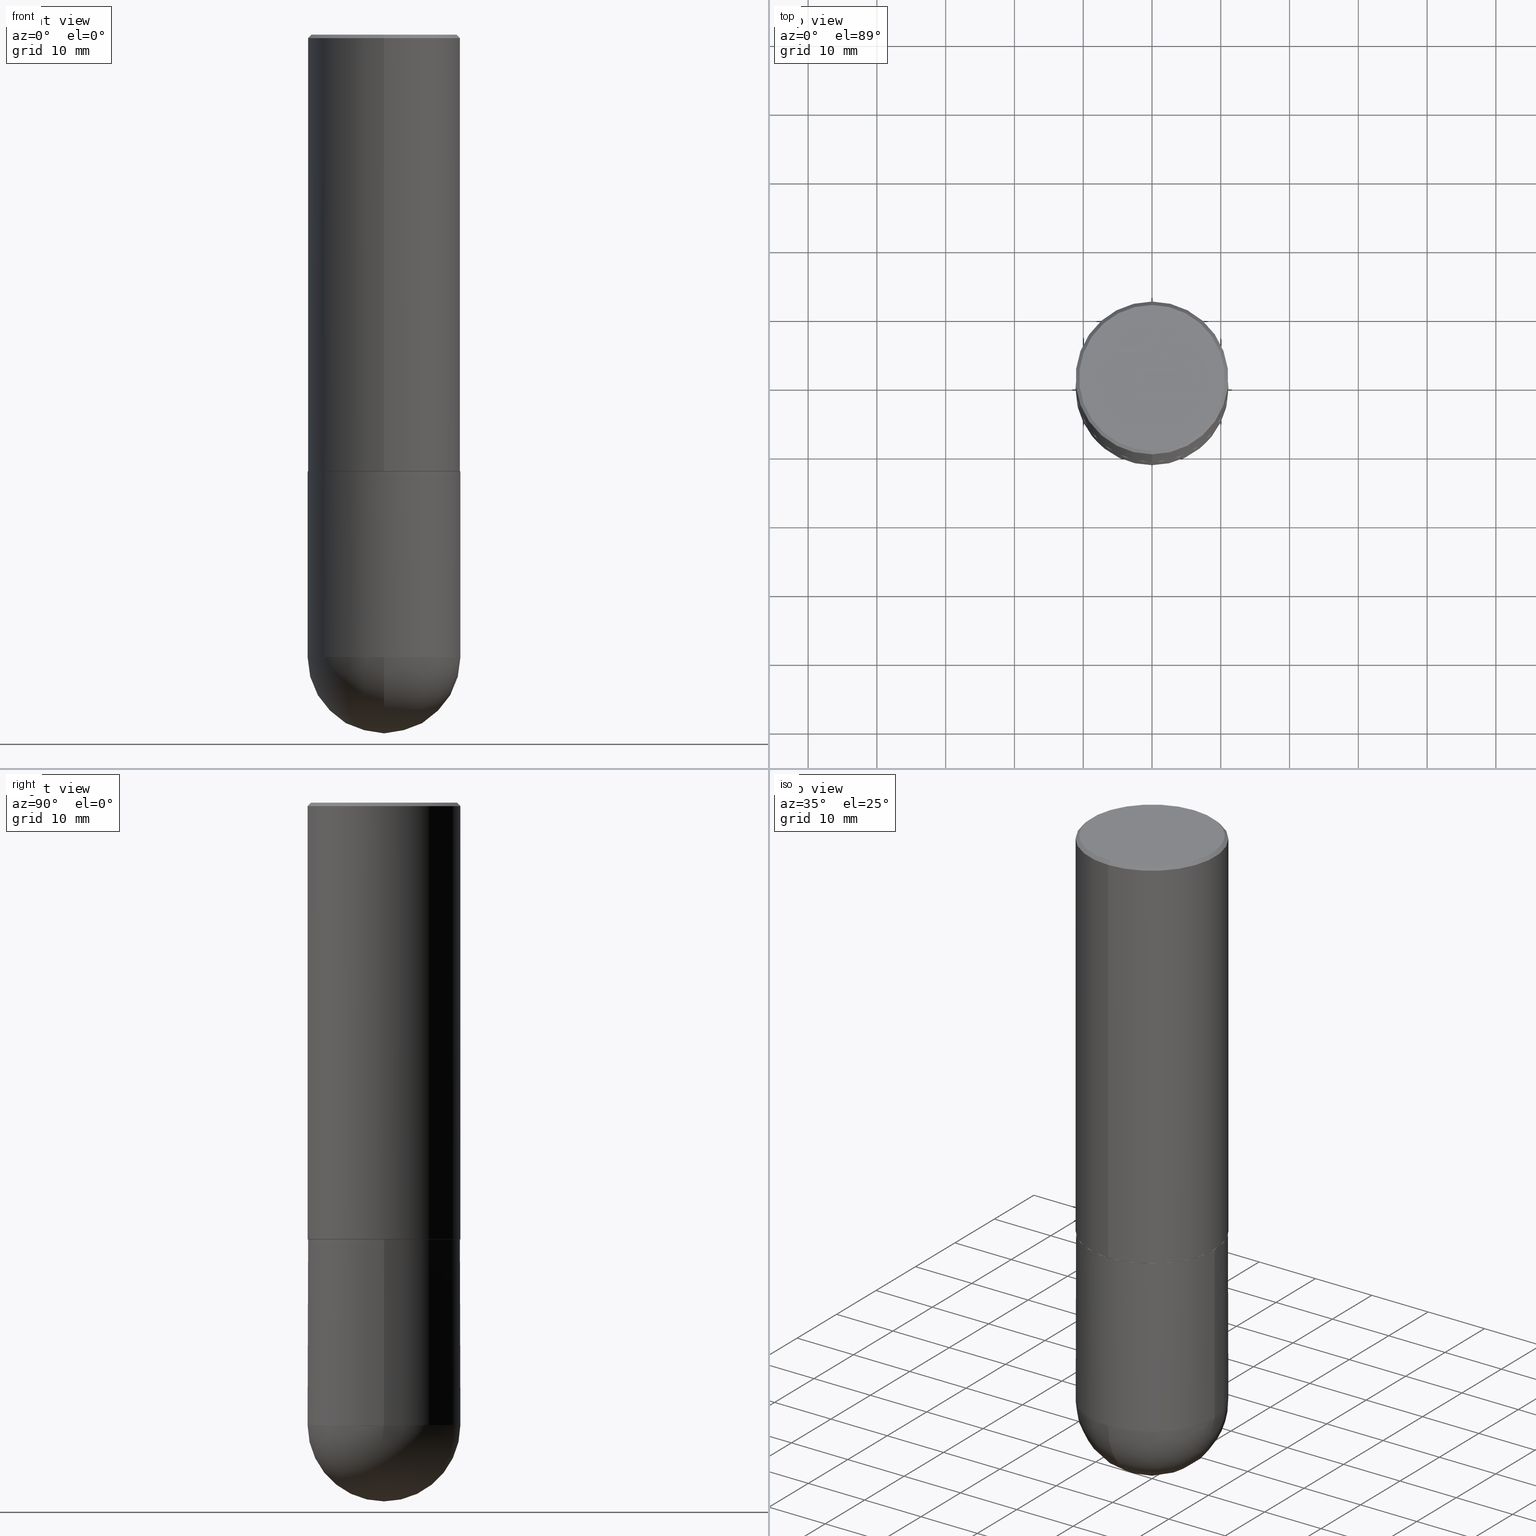
[diagram: canonical four-view strip — front | top / right | iso, engineering-drawing reading convention]
A machine part, canonical four-view strip (front | top / right | iso — engineering-drawing reading convention). The complete STEP part file that produces these views, byte-faithful:
ISO-10303-21;
HEADER;
FILE_DESCRIPTION (( 'STEP AP203' ),
    '1' );
FILE_NAME ('30067.STEP',
    '2024-02-21T16:35:09',
    ( '' ),
    ( '' ),
    'SwSTEP 2.0',
    'SolidWorks 2023',
    '' );
FILE_SCHEMA (( 'CONFIG_CONTROL_DESIGN' ));
ENDSEC;

DATA;
#1 = CYLINDRICAL_SURFACE ( 'NONE', #273, 0.4374999999999998890 ) ;
#2 = AXIS2_PLACEMENT_3D ( 'NONE', #242, #365, #87 ) ;
#3 = CARTESIAN_POINT ( 'NONE',  ( 0.4374999999999998890, -3.055046171487740897E-15, 2.133327339410721209E-29 ) ) ;
#4 = APPROVAL_ROLE ( '' ) ;
#5 = CC_DESIGN_DATE_AND_TIME_ASSIGNMENT ( #111, #84, ( #401 ) ) ;
#6 = DIRECTION ( 'NONE',  ( -2.445589378329462952E-29, 3.491308672669929878E-15, 1.000000000000000000 ) ) ;
#7 = DIRECTION ( 'NONE',  ( -1.000000000000000000, 6.982962677686265922E-15, -4.883557194083112340E-29 ) ) ;
#8 = VERTEX_POINT ( 'NONE', #30 ) ;
#9 = CARTESIAN_POINT ( 'NONE',  ( 6.113672015462842613E-29, -8.728703347107864943E-15, -2.500000000000000000 ) ) ;
#10 = DIRECTION ( 'NONE',  ( -1.000000000000000000, 6.982962677686265922E-15, -4.883557194083112340E-29 ) ) ;
#11 = DATE_AND_TIME ( #259, #322 ) ;
#12 = ORIENTED_EDGE ( 'NONE', *, *, #343, .T. ) ;
#13 = PERSON_AND_ORGANIZATION_ROLE ( 'creator' ) ;
#14 = ORIENTED_EDGE ( 'NONE', *, *, #248, .F. ) ;
#15 = APPROVAL_STATUS ( 'not_yet_approved' ) ;
#16 = ORIENTED_EDGE ( 'NONE', *, *, #398, .F. ) ;
#17 = ORIENTED_EDGE ( 'NONE', *, *, #325, .T. ) ;
#18 = AXIS2_PLACEMENT_3D ( 'NONE', #139, #10, #74 ) ;
#19 = EDGE_CURVE ( 'NONE', #336, #198, #59, .T. ) ;
#20 = CC_DESIGN_APPROVAL ( #299, ( #148 ) ) ;
#21 = ORIENTED_EDGE ( 'NONE', *, *, #152, .F. ) ;
#22 = ORIENTED_EDGE ( 'NONE', *, *, #101, .F. ) ;
#23 = CARTESIAN_POINT ( 'NONE',  ( 6.113973445823658220E-29, -8.728271681674825680E-15, -2.500000000000000000 ) ) ;
#24 = ORIENTED_EDGE ( 'NONE', *, *, #143, .T. ) ;
#25 = AXIS2_PLACEMENT_3D ( 'NONE', #410, #282, #122 ) ;
#26 = DIRECTION ( 'NONE',  ( 0.000000000000000000, 0.000000000000000000, 1.000000000000000000 ) ) ;
#27 = CARTESIAN_POINT ( 'NONE',  ( -5.739702864296203553E-45, 8.193965252807117004E-31, 2.346960988282051654E-16 ) ) ;
#28 = CARTESIAN_POINT ( 'NONE',  ( 0.000000000000000000, 0.000000000000000000, 0.000000000000000000 ) ) ;
#29 = DIRECTION ( 'NONE',  ( -6.982962677686265922E-15, -1.000000000000000000, 3.491308672669929878E-15 ) ) ;
#30 = CARTESIAN_POINT ( 'NONE',  ( 0.4375000000000000000, -1.178374951859560505E-14, -2.500000000000000000 ) ) ;
#31 = AXIS2_PLACEMENT_3D ( 'NONE', #58, #382, #190 ) ;
#32 = CARTESIAN_POINT ( 'NONE',  ( -2.932862894047327755E-15, -0.4174999999999997047, 1.692317469667899733E-15 ) ) ;
#33 = DIRECTION ( 'NONE',  ( 1.000000000000000000, -6.982962677686265133E-15, 0.000000000000000000 ) ) ;
#34 = FACE_OUTER_BOUND ( 'NONE', #302, .T. ) ;
#35 = SPHERICAL_SURFACE ( 'NONE', #18, 0.4375000000000001665 ) ;
#36 = PERSON_AND_ORGANIZATION_ROLE ( 'classification_officer' ) ;
#37 = CC_DESIGN_PERSON_AND_ORGANIZATION_ASSIGNMENT ( #265, #205, ( #337 ) ) ;
#38 = MANIFOLD_SOLID_BREP ( 'Body-Move/Copy2[2]', #240 ) ;
#39 = AXIS2_PLACEMENT_3D ( 'NONE', #81, #390, #132 ) ;
#40 = PERSON_AND_ORGANIZATION ( #266, #306 ) ;
#41 = DESIGN_CONTEXT ( 'detailed design', #71, 'design' ) ;
#42 = ORIENTED_EDGE ( 'NONE', *, *, #405, .F. ) ;
#43 = LINE ( 'NONE', #375, #407 ) ;
#44 = COORDINATED_UNIVERSAL_TIME_OFFSET ( 5, 0, .BEHIND. ) ;
#45 = ORIENTED_EDGE ( 'NONE', *, *, #62, .F. ) ;
#46 = CONICAL_SURFACE ( 'NONE', #351, 0.4375000000000000000, 0.7853981633974466137 ) ;
#47 = CALENDAR_DATE ( 2024, 21, 2 ) ;
#48 = VERTEX_POINT ( 'NONE', #164 ) ;
#49 = ORIENTED_EDGE ( 'NONE', *, *, #101, .T. ) ;
#50 = ADVANCED_FACE ( 'NONE', ( #96 ), #179, .T. ) ;
#51 = ORIENTED_EDGE ( 'NONE', *, *, #271, .F. ) ;
#52 = CIRCLE ( 'NONE', #31, 0.4174999999999997047 ) ;
#53 = AXIS2_PLACEMENT_3D ( 'NONE', #63, #348, #280 ) ;
#54 = ORIENTED_EDGE ( 'NONE', *, *, #187, .T. ) ;
#55 = CARTESIAN_POINT ( 'NONE',  ( 8.711982622034549126E-29, -1.243840226962870597E-14, -3.562500000000000000 ) ) ;
#56 = APPLICATION_PROTOCOL_DEFINITION ( 'international standard', 'config_control_design', 1994, #328 ) ;
#57 = CIRCLE ( 'NONE', #366, 0.4375000000000000000 ) ;
#58 = CARTESIAN_POINT ( 'NONE',  ( -5.739702864296203553E-45, 8.193965252807117004E-31, 2.346960988282051654E-16 ) ) ;
#59 = CIRCLE ( 'NONE', #25, 0.4374999999999998890 ) ;
#60 = DIRECTION ( 'NONE',  ( -6.982962677686264344E-15, -1.000000000000000000, 3.755117517064279208E-15 ) ) ;
#61 = DIRECTION ( 'NONE',  ( -2.445589378329462952E-29, 3.491308672669929878E-15, 1.000000000000000000 ) ) ;
#62 = EDGE_CURVE ( 'NONE', #156, #76, #115, .T. ) ;
#63 = CARTESIAN_POINT ( 'NONE',  ( 0.000000000000000000, 0.000000000000000000, 0.000000000000000000 ) ) ;
#64 = PRODUCT_RELATED_PRODUCT_CATEGORY ( 'detail', '', ( #337 ) ) ;
#65 = DIRECTION ( 'NONE',  ( 2.438088387897960049E-29, -3.491481338843145188E-15, -1.000000000000000000 ) ) ;
#66 = LINE ( 'NONE', #161, #68 ) ;
#67 = CARTESIAN_POINT ( 'NONE',  ( 2.915386917934013906E-15, 0.4174999999999997047, -1.340273321425592132E-15 ) ) ;
#68 = VECTOR ( 'NONE', #224, 39.37007874015748143 ) ;
#69 = CARTESIAN_POINT ( 'NONE',  ( 8.711982622034549126E-29, -1.243840226962870597E-14, -3.562500000000000000 ) ) ;
#70 = CARTESIAN_POINT ( 'NONE',  ( 8.711982622034549126E-29, -1.243840226962870597E-14, -3.562500000000000000 ) ) ;
#71 = APPLICATION_CONTEXT ( 'configuration controlled 3d designs of mechanical parts and assemblies' ) ;
#72 = DIRECTION ( 'NONE',  ( 6.982962677686265922E-15, 1.000000000000000000, 0.000000000000000000 ) ) ;
#73 = APPROVAL_STATUS ( 'not_yet_approved' ) ;
#74 = DIRECTION ( 'NONE',  ( 6.982962677686265922E-15, 1.000000000000000000, -3.746534391310987979E-15 ) ) ;
#75 = DIRECTION ( 'NONE',  ( -2.445468806185136877E-29, 3.491481338843145188E-15, 1.000000000000000000 ) ) ;
#76 = VERTEX_POINT ( 'NONE', #252 ) ;
#77 = CARTESIAN_POINT ( 'NONE',  ( -0.4374999999999998890, 3.108624468950437524E-15, -2.152034101986520964E-29 ) ) ;
#78 = AXIS2_PLACEMENT_3D ( 'NONE', #371, #177, #249 ) ;
#79 = ORIENTED_EDGE ( 'NONE', *, *, #152, .T. ) ;
#80 = DIRECTION ( 'NONE',  ( 6.982962677686265133E-15, 1.000000000000000000, -3.492862791899308071E-15 ) ) ;
#81 = CARTESIAN_POINT ( 'NONE',  ( 8.380862844120662879E-29, -1.291258463776875784E-14, -3.562500000000000000 ) ) ;
#82 = PERSON_AND_ORGANIZATION ( #266, #306 ) ;
#83 = EDGE_LOOP ( 'NONE', ( #42, #270, #146, #201 ) ) ;
#84 = DATE_TIME_ROLE ( 'classification_date' ) ;
#85 = ORIENTED_EDGE ( 'NONE', *, *, #158, .T. ) ;
#86 = AXIS2_PLACEMENT_3D ( 'NONE', #123, #61, #244 ) ;
#87 = DIRECTION ( 'NONE',  ( -6.982962677686265922E-15, -1.000000000000000000, 3.491308672669929878E-15 ) ) ;
#88 = ORIENTED_EDGE ( 'NONE', *, *, #211, .F. ) ;
#89 = EDGE_LOOP ( 'NONE', ( #361, #116, #92, #51 ) ) ;
#90 = CIRCLE ( 'NONE', #78, 0.4375000000000000000 ) ;
#91 = AXIS2_PLACEMENT_3D ( 'NONE', #103, #124, #189 ) ;
#92 = ORIENTED_EDGE ( 'NONE', *, *, #157, .F. ) ;
#93 = EDGE_CURVE ( 'NONE', #326, #48, #379, .T. ) ;
#94 = DIRECTION ( 'NONE',  ( 4.937700262164538576E-15, 0.7071067811865437980, -0.7071067811865511255 ) ) ;
#95 = CARTESIAN_POINT ( 'NONE',  ( 0.4374999999999998890, -1.363859897985603030E-14, -3.562500000000000000 ) ) ;
#96 = FACE_OUTER_BOUND ( 'NONE', #83, .T. ) ;
#97 =( LENGTH_UNIT ( ) NAMED_UNIT ( * ) SI_UNIT ( $, .METRE. ) );
#98 = LOCAL_TIME ( 11, 35, 9.000000000000000000, #324 ) ;
#99 = DIRECTION ( 'NONE',  ( 1.000000000000000000, -6.982962677686265133E-15, 0.000000000000000000 ) ) ;
#100 = CIRCLE ( 'NONE', #323, 0.4375000000000002776 ) ;
#101 = EDGE_CURVE ( 'NONE', #392, #329, #52, .T. ) ;
#102 = CC_DESIGN_PERSON_AND_ORGANIZATION_ASSIGNMENT ( #233, #363, ( #160 ) ) ;
#103 = CARTESIAN_POINT ( 'NONE',  ( 6.113973445823658220E-29, -8.728271681674825680E-15, -2.500000000000000000 ) ) ;
#104 = FACE_OUTER_BOUND ( 'NONE', #117, .T. ) ;
#105 = FACE_OUTER_BOUND ( 'NONE', #334, .T. ) ;
#106 = SPHERICAL_SURFACE ( 'NONE', #184, 0.4375000000000001665 ) ;
#107 = LINE ( 'NONE', #168, #372 ) ;
#108 = APPROVAL ( #296, 'UNSPECIFIED' ) ;
#109 = DATE_AND_TIME ( #140, #138 ) ;
#110 = CARTESIAN_POINT ( 'NONE',  ( 9.469462209402459055E-29, -1.441331857478128510E-14, -4.000000000000000000 ) ) ;
#111 = DATE_AND_TIME ( #202, #129 ) ;
#112 = CIRCLE ( 'NONE', #258, 0.4174999999999997047 ) ;
#113 = CARTESIAN_POINT ( 'NONE',  ( 4.891178756658950356E-31, -6.982617345339894070E-17, -0.02000000000000009756 ) ) ;
#114 = SHAPE_DEFINITION_REPRESENTATION ( #155, #142 ) ;
#115 = CIRCLE ( 'NONE', #213, 0.4364999999999999991 ) ;
#116 = ORIENTED_EDGE ( 'NONE', *, *, #405, .T. ) ;
#117 = EDGE_LOOP ( 'NONE', ( #186, #79, #269, #144, #210 ) ) ;
#118 = EDGE_LOOP ( 'NONE', ( #12, #85 ) ) ;
#119 = AXIS2_PLACEMENT_3D ( 'NONE', #381, #250, #215 ) ;
#120 = CC_DESIGN_SECURITY_CLASSIFICATION ( #401, ( #148 ) ) ;
#121 = DIMENSIONAL_EXPONENTS ( 1.000000000000000000, 0.000000000000000000, 0.000000000000000000, 0.000000000000000000, 0.000000000000000000, 0.000000000000000000, 0.000000000000000000 ) ;
#122 = DIRECTION ( 'NONE',  ( 1.000000000000000000, -6.982962677686265133E-15, 0.000000000000000000 ) ) ;
#123 = CARTESIAN_POINT ( 'NONE',  ( 6.113973445823658220E-29, -8.728271681674825680E-15, -2.500000000000000000 ) ) ;
#124 = DIRECTION ( 'NONE',  ( -2.445589378329462952E-29, 3.491308672669929878E-15, 1.000000000000000000 ) ) ;
#125 = ADVANCED_FACE ( 'NONE', ( #105 ), #349, .F. ) ;
#126 = DIRECTION ( 'NONE',  ( -2.445589378329462952E-29, 3.491308672669929878E-15, 1.000000000000000000 ) ) ;
#127 = CONICAL_SURFACE ( 'NONE', #86, 0.4364999999999999991, 0.7853981633976873100 ) ;
#128 = CARTESIAN_POINT ( 'NONE',  ( 6.113973445823658220E-29, -8.728271681674825680E-15, -2.500000000000000000 ) ) ;
#129 = LOCAL_TIME ( 11, 35, 9.000000000000000000, #362 ) ;
#130 = CYLINDRICAL_SURFACE ( 'NONE', #53, 0.4374999999999998890 ) ;
#131 = DIRECTION ( 'NONE',  ( -2.445589378329462952E-29, 3.491308672669929878E-15, 1.000000000000000000 ) ) ;
#132 = DIRECTION ( 'NONE',  ( -7.105427357601001070E-15, -1.000000000000000000, 0.000000000000000000 ) ) ;
#133 = DIRECTION ( 'NONE',  ( 2.445589378329462952E-29, -3.491308672669929878E-15, -1.000000000000000000 ) ) ;
#134 = CARTESIAN_POINT ( 'NONE',  ( 3.055046171487827277E-15, 0.4374999999999873435, -3.562500000000001776 ) ) ;
#135 = DIRECTION ( 'NONE',  ( 1.000000000000000000, -6.982962677686266711E-15, 4.876176775795935232E-29 ) ) ;
#136 = EDGE_CURVE ( 'NONE', #329, #392, #112, .T. ) ;
#137 = DIRECTION ( 'NONE',  ( 1.000000000000000000, -6.982962677686265922E-15, 4.883557194083112340E-29 ) ) ;
#138 = LOCAL_TIME ( 11, 35, 9.000000000000000000, #320 ) ;
#139 = CARTESIAN_POINT ( 'NONE',  ( 8.380862844120662879E-29, -1.291258463776875784E-14, -3.562500000000000000 ) ) ;
#140 = CALENDAR_DATE ( 2024, 21, 2 ) ;
#141 = PERSON_AND_ORGANIZATION ( #266, #306 ) ;
#142 = ADVANCED_BREP_SHAPE_REPRESENTATION ( '30067', ( #307, #38, #331 ), #216 ) ;
#143 = EDGE_CURVE ( 'NONE', #329, #313, #374, .T. ) ;
#144 = ORIENTED_EDGE ( 'NONE', *, *, #317, .T. ) ;
#145 = DATE_TIME_ROLE ( 'creation_date' ) ;
#146 = ORIENTED_EDGE ( 'NONE', *, *, #271, .T. ) ;
#147 = AXIS2_PLACEMENT_3D ( 'NONE', #162, #133, #316 ) ;
#148 = PRODUCT_DEFINITION_FORMATION_WITH_SPECIFIED_SOURCE ( 'ANY', '', #337, .NOT_KNOWN. ) ;
#149 = APPROVAL_PERSON_ORGANIZATION ( #82, #299, #178 ) ;
#150 = APPROVAL_ROLE ( '' ) ;
#151 = EDGE_LOOP ( 'NONE', ( #54, #181, #241, #304, #263 ) ) ;
#152 = EDGE_CURVE ( 'NONE', #397, #293, #402, .T. ) ;
#153 = ORIENTED_EDGE ( 'NONE', *, *, #335, .F. ) ;
#154 = CYLINDRICAL_SURFACE ( 'NONE', #2, 0.4375000000000001110 ) ;
#155 = PRODUCT_DEFINITION_SHAPE ( 'NONE', 'NONE',  #160 ) ;
#156 = VERTEX_POINT ( 'NONE', #218 ) ;
#157 = EDGE_CURVE ( 'NONE', #48, #326, #100, .T. ) ;
#158 = EDGE_CURVE ( 'NONE', #243, #8, #227, .T. ) ;
#159 = DIRECTION ( 'NONE',  ( -6.982962677686265922E-15, -1.000000000000000000, 3.491308672669929878E-15 ) ) ;
#160 = PRODUCT_DEFINITION ( 'UNKNOWN', '', #148, #41 ) ;
#161 = CARTESIAN_POINT ( 'NONE',  ( 3.108624468950438708E-15, 0.4375000000000001110, -1.527447544293094691E-15 ) ) ;
#162 = CARTESIAN_POINT ( 'NONE',  ( 4.891178756658950356E-31, -6.982617345339894070E-17, -0.02000000000000009756 ) ) ;
#163 = AXIS2_PLACEMENT_3D ( 'NONE', #191, #346, #29 ) ;
#164 = CARTESIAN_POINT ( 'NONE',  ( -3.055046171487681732E-15, -0.4375000000000089928, -2.498999999999998778 ) ) ;
#165 = LOCAL_TIME ( 11, 35, 9.000000000000000000, #44 ) ;
#166 = DIRECTION ( 'NONE',  ( -2.445589378329463232E-29, 3.491308672669929878E-15, 1.000000000000000000 ) ) ;
#167 = CARTESIAN_POINT ( 'NONE',  ( 0.000000000000000000, 0.000000000000000000, 0.000000000000000000 ) ) ;
#168 = CARTESIAN_POINT ( 'NONE',  ( 3.101519041592897653E-15, 0.4364999999999912283, -2.500000000000001776 ) ) ;
#169 = LINE ( 'NONE', #291, #378 ) ;
#170 = VECTOR ( 'NONE', #94, 39.37007874015748854 ) ;
#171 = EDGE_LOOP ( 'NONE', ( #88, #239, #24, #175 ) ) ;
#172 = FACE_OUTER_BOUND ( 'NONE', #118, .T. ) ;
#173 = EDGE_LOOP ( 'NONE', ( #16, #206, #403, #305 ) ) ;
#174 = DATE_AND_TIME ( #47, #165 ) ;
#175 = ORIENTED_EDGE ( 'NONE', *, *, #353, .T. ) ;
#176 = CONICAL_SURFACE ( 'NONE', #147, 0.4375000000000000000, 0.7853981633974466137 ) ;
#177 = DIRECTION ( 'NONE',  ( -2.445589378329462952E-29, 3.491308672669929878E-15, 1.000000000000000000 ) ) ;
#178 = APPROVAL_ROLE ( '' ) ;
#179 = CONICAL_SURFACE ( 'NONE', #344, 0.4364999999999999991, 0.7853981633976873100 ) ;
#180 = CYLINDRICAL_SURFACE ( 'NONE', #387, 0.4375000000000001110 ) ;
#181 = ORIENTED_EDGE ( 'NONE', *, *, #278, .T. ) ;
#182 = ORIENTED_EDGE ( 'NONE', *, *, #187, .F. ) ;
#183 = FACE_OUTER_BOUND ( 'NONE', #204, .T. ) ;
#184 = AXIS2_PLACEMENT_3D ( 'NONE', #292, #7, #261 ) ;
#185 = ADVANCED_FACE ( 'NONE', ( #172 ), #264, .F. ) ;
#186 = ORIENTED_EDGE ( 'NONE', *, *, #278, .F. ) ;
#187 = EDGE_CURVE ( 'NONE', #198, #397, #338, .T. ) ;
#188 = AXIS2_PLACEMENT_3D ( 'NONE', #69, #225, #254 ) ;
#189 = DIRECTION ( 'NONE',  ( -6.982962677686264344E-15, -1.000000000000000000, 3.755117517064279208E-15 ) ) ;
#190 = DIRECTION ( 'NONE',  ( -6.982962677686265922E-15, -1.000000000000000000, 3.491308672669929878E-15 ) ) ;
#191 = CARTESIAN_POINT ( 'NONE',  ( 6.113973445823658220E-29, -8.728271681674825680E-15, -2.500000000000000000 ) ) ;
#192 =( CONVERSION_BASED_UNIT ( 'INCH', #310 ) LENGTH_UNIT ( ) NAMED_UNIT ( #121 ) );
#193 = APPROVAL_PERSON_ORGANIZATION ( #40, #345, #150 ) ;
#194 = EDGE_CURVE ( 'NONE', #48, #399, #350, .T. ) ;
#195 = DIRECTION ( 'NONE',  ( -2.445589378329462952E-29, 3.491308672669929878E-15, 1.000000000000000000 ) ) ;
#196 = CARTESIAN_POINT ( 'NONE',  ( -3.001467874025043875E-15, -0.4375000000000000555, -0.01999999999999857100 ) ) ;
#197 = APPROVAL_DATE_TIME ( #109, #108 ) ;
#198 = VERTEX_POINT ( 'NONE', #134 ) ;
#199 = ADVANCED_FACE ( 'NONE', ( #393 ), #46, .T. ) ;
#200 = VECTOR ( 'NONE', #234, 39.37007874015748143 ) ;
#201 = ORIENTED_EDGE ( 'NONE', *, *, #93, .F. ) ;
#202 = CALENDAR_DATE ( 2024, 21, 2 ) ;
#203 = ORIENTED_EDGE ( 'NONE', *, *, #325, .F. ) ;
#204 = EDGE_LOOP ( 'NONE', ( #295, #235, #203, #297 ) ) ;
#205 = PERSON_AND_ORGANIZATION_ROLE ( 'design_owner' ) ;
#206 = ORIENTED_EDGE ( 'NONE', *, *, #93, .T. ) ;
#207 = CIRCLE ( 'NONE', #91, 0.4364999999999999991 ) ;
#208 = CARTESIAN_POINT ( 'NONE',  ( 0.000000000000000000, 0.000000000000000000, 0.000000000000000000 ) ) ;
#209 = ORIENTED_EDGE ( 'NONE', *, *, #211, .T. ) ;
#210 = ORIENTED_EDGE ( 'NONE', *, *, #158, .F. ) ;
#211 = EDGE_CURVE ( 'NONE', #392, #399, #43, .T. ) ;
#212 = CIRCLE ( 'NONE', #39, 0.4375000000000001665 ) ;
#213 = AXIS2_PLACEMENT_3D ( 'NONE', #23, #126, #60 ) ;
#214 = ADVANCED_FACE ( 'NONE', ( #342 ), #127, .T. ) ;
#215 = DIRECTION ( 'NONE',  ( -6.982962677686265133E-15, -1.000000000000000000, 3.492862791899308071E-15 ) ) ;
#216 =( GEOMETRIC_REPRESENTATION_CONTEXT ( 3 ) GLOBAL_UNCERTAINTY_ASSIGNED_CONTEXT ( ( #283 ) ) GLOBAL_UNIT_ASSIGNED_CONTEXT ( ( #192, #285, #385 ) ) REPRESENTATION_CONTEXT ( 'NONE', 'WORKASPACE' ) );
#217 = CARTESIAN_POINT ( 'NONE',  ( 6.113672015462842613E-29, -8.728703347107864943E-15, -2.500000000000000000 ) ) ;
#218 = CARTESIAN_POINT ( 'NONE',  ( -3.048063208809993352E-15, -0.4365000000000087144, -2.499999999999998668 ) ) ;
#219 = FACE_OUTER_BOUND ( 'NONE', #367, .T. ) ;
#220 = PLANE ( 'NONE',  #163 ) ;
#221 = DIRECTION ( 'NONE',  ( -6.982962677686265133E-15, -1.000000000000000000, 3.746534391310987190E-15 ) ) ;
#222 = CARTESIAN_POINT ( 'NONE',  ( 3.055046171487802034E-15, 0.4374999999999912292, -2.500000000000001776 ) ) ;
#223 = EDGE_CURVE ( 'NONE', #272, #293, #212, .T. ) ;
#224 = DIRECTION ( 'NONE',  ( -2.445589378329463232E-29, 3.491308672669929878E-15, 1.000000000000000000 ) ) ;
#225 = DIRECTION ( 'NONE',  ( -2.445468806185136597E-29, 3.491481338843145583E-15, 1.000000000000000000 ) ) ;
#226 = CARTESIAN_POINT ( 'NONE',  ( -0.4375000000000000000, -7.474928339417847141E-15, -2.500000000000000000 ) ) ;
#227 = CIRCLE ( 'NONE', #359, 0.4375000000000000000 ) ;
#228 = CC_DESIGN_PERSON_AND_ORGANIZATION_ASSIGNMENT ( #391, #231, ( #148 ) ) ;
#229 = DIRECTION ( 'NONE',  ( 1.000000000000000000, -6.982962677686265133E-15, 0.000000000000000000 ) ) ;
#230 = DIRECTION ( 'NONE',  ( -2.445468806185136597E-29, 3.491481338843145583E-15, 1.000000000000000000 ) ) ;
#231 = PERSON_AND_ORGANIZATION_ROLE ( 'design_supplier' ) ;
#232 = EDGE_LOOP ( 'NONE', ( #404, #364, #406, #14 ) ) ;
#233 = PERSON_AND_ORGANIZATION ( #266, #306 ) ;
#234 = DIRECTION ( 'NONE',  ( -2.445468806185136877E-29, 3.491481338843145188E-15, 1.000000000000000000 ) ) ;
#235 = ORIENTED_EDGE ( 'NONE', *, *, #398, .T. ) ;
#236 = SECURITY_CLASSIFICATION_LEVEL ( 'unclassified' ) ;
#237 = ADVANCED_FACE ( 'NONE', ( #219 ), #106, .T. ) ;
#238 = DIRECTION ( 'NONE',  ( 2.445589378329462952E-29, -3.491308672669929878E-15, -1.000000000000000000 ) ) ;
#239 = ORIENTED_EDGE ( 'NONE', *, *, #136, .F. ) ;
#240 = CLOSED_SHELL ( 'NONE', ( #214, #287, #370, #199, #281, #50, #358, #125 ) ) ;
#241 = ORIENTED_EDGE ( 'NONE', *, *, #343, .F. ) ;
#242 = CARTESIAN_POINT ( 'NONE',  ( 0.000000000000000000, 0.000000000000000000, 0.000000000000000000 ) ) ;
#243 = VERTEX_POINT ( 'NONE', #226 ) ;
#244 = DIRECTION ( 'NONE',  ( -6.982962677686264344E-15, -1.000000000000000000, 3.755117517064279208E-15 ) ) ;
#245 = AXIS2_PLACEMENT_3D ( 'NONE', #409, #137, #72 ) ;
#246 = CC_DESIGN_PERSON_AND_ORGANIZATION_ASSIGNMENT ( #294, #13, ( #148 ) ) ;
#247 = DIRECTION ( 'NONE',  ( 2.445589378329462671E-29, -3.491308672669929878E-15, -1.000000000000000000 ) ) ;
#248 = EDGE_CURVE ( 'NONE', #293, #336, #321, .T. ) ;
#249 = DIRECTION ( 'NONE',  ( -6.982962677686265133E-15, -1.000000000000000000, 3.492862791899308071E-15 ) ) ;
#250 = DIRECTION ( 'NONE',  ( -2.445589378329462952E-29, 3.491308672669929878E-15, 1.000000000000000000 ) ) ;
#251 = CARTESIAN_POINT ( 'NONE',  ( 3.055046171487741686E-15, 0.4374999999999998890, -0.02000000000000162759 ) ) ;
#252 = CARTESIAN_POINT ( 'NONE',  ( 3.105071755271698946E-15, 0.4364999999999912283, -2.500000000000001776 ) ) ;
#253 = DIRECTION ( 'NONE',  ( -6.982962677686265133E-15, -1.000000000000000000, 3.746534391310987190E-15 ) ) ;
#254 = DIRECTION ( 'NONE',  ( 1.000000000000000000, -6.982962677686265133E-15, 0.000000000000000000 ) ) ;
#255 = FACE_OUTER_BOUND ( 'NONE', #232, .T. ) ;
#256 = PERSON_AND_ORGANIZATION ( #266, #306 ) ;
#257 = ADVANCED_FACE ( 'NONE', ( #386 ), #1, .T. ) ;
#258 = AXIS2_PLACEMENT_3D ( 'NONE', #27, #195, #159 ) ;
#259 = CALENDAR_DATE ( 2024, 21, 2 ) ;
#260 = DIRECTION ( 'NONE',  ( -2.445468806185136597E-29, 3.491481338843145583E-15, 1.000000000000000000 ) ) ;
#261 = DIRECTION ( 'NONE',  ( 6.982962677686265922E-15, 1.000000000000000000, -3.746534391310987979E-15 ) ) ;
#262 = CALENDAR_DATE ( 2024, 21, 2 ) ;
#263 = ORIENTED_EDGE ( 'NONE', *, *, #19, .T. ) ;
#264 = PLANE ( 'NONE',  #267 ) ;
#265 = PERSON_AND_ORGANIZATION ( #266, #306 ) ;
#266 = PERSON ( 'UNSPECIFIED', 'UNSPECIFIED', 'UNSPECIFIED', ('UNSPECIFIED'), ('UNSPECIFIED'), ('UNSPECIFIED') ) ;
#267 = AXIS2_PLACEMENT_3D ( 'NONE', #222, #65, #383 ) ;
#268 = ADVANCED_FACE ( 'NONE', ( #255 ), #35, .T. ) ;
#269 = ORIENTED_EDGE ( 'NONE', *, *, #248, .T. ) ;
#270 = ORIENTED_EDGE ( 'NONE', *, *, #339, .T. ) ;
#271 = EDGE_CURVE ( 'NONE', #156, #48, #169, .T. ) ;
#272 = VERTEX_POINT ( 'NONE', #110 ) ;
#273 = AXIS2_PLACEMENT_3D ( 'NONE', #167, #356, #135 ) ;
#274 = AXIS2_PLACEMENT_3D ( 'NONE', #55, #377, #99 ) ;
#275 = ORIENTED_EDGE ( 'NONE', *, *, #339, .F. ) ;
#276 = DIRECTION ( 'NONE',  ( -6.982962677686264344E-15, -1.000000000000000000, 3.755117517064279208E-15 ) ) ;
#277 = VECTOR ( 'NONE', #75, 39.37007874015748143 ) ;
#278 = EDGE_CURVE ( 'NONE', #397, #243, #357, .T. ) ;
#279 = DIRECTION ( 'NONE',  ( -4.851104656540954809E-15, -0.7071067811865486830, -0.7071067811865462405 ) ) ;
#280 = DIRECTION ( 'NONE',  ( 1.000000000000000000, -6.982962677686266711E-15, 4.876176775795935232E-29 ) ) ;
#281 = ADVANCED_FACE ( 'NONE', ( #332 ), #180, .T. ) ;
#282 = DIRECTION ( 'NONE',  ( -2.445468806185136597E-29, 3.491481338843145583E-15, 1.000000000000000000 ) ) ;
#283 = UNCERTAINTY_MEASURE_WITH_UNIT (LENGTH_MEASURE( 1.000000000000000082E-05 ), #192, 'distance_accuracy_value', 'NONE');
#284 = APPROVAL_PERSON_ORGANIZATION ( #256, #108, #4 ) ;
#285 =( NAMED_UNIT ( * ) PLANE_ANGLE_UNIT ( ) SI_UNIT ( $, .RADIAN. ) );
#286 = DIRECTION ( 'NONE',  ( -2.445468806185136597E-29, 3.491481338843145583E-15, 1.000000000000000000 ) ) ;
#287 = ADVANCED_FACE ( 'NONE', ( #183 ), #154, .T. ) ;
#288 = APPLICATION_PROTOCOL_DEFINITION ( 'international standard', 'config_control_design', 1994, #71 ) ;
#289 = CIRCLE ( 'NONE', #119, 0.4375000000000000000 ) ;
#290 = AXIS2_PLACEMENT_3D ( 'NONE', #67, #247, #309 ) ;
#291 = CARTESIAN_POINT ( 'NONE',  ( -3.048063208809993352E-15, -0.4365000000000087144, -2.499999999999998668 ) ) ;
#292 = CARTESIAN_POINT ( 'NONE',  ( 8.380862844120662879E-29, -1.291258463776875784E-14, -3.562500000000000000 ) ) ;
#293 = VERTEX_POINT ( 'NONE', #301 ) ;
#294 = PERSON_AND_ORGANIZATION ( #266, #306 ) ;
#295 = ORIENTED_EDGE ( 'NONE', *, *, #157, .T. ) ;
#296 = APPROVAL_STATUS ( 'not_yet_approved' ) ;
#297 = ORIENTED_EDGE ( 'NONE', *, *, #194, .F. ) ;
#298 = DIRECTION ( 'NONE',  ( -2.445589378329462952E-29, 3.491308672669929878E-15, 1.000000000000000000 ) ) ;
#299 = APPROVAL ( #73, 'UNSPECIFIED' ) ;
#300 = EDGE_LOOP ( 'NONE', ( #22, #209, #17, #396 ) ) ;
#301 = CARTESIAN_POINT ( 'NONE',  ( -3.108624468950352327E-15, -0.4375000000000127676, -3.562499999999998224 ) ) ;
#302 = EDGE_LOOP ( 'NONE', ( #45, #275 ) ) ;
#303 = CIRCLE ( 'NONE', #245, 0.4375000000000001665 ) ;
#304 = ORIENTED_EDGE ( 'NONE', *, *, #317, .F. ) ;
#305 = ORIENTED_EDGE ( 'NONE', *, *, #353, .F. ) ;
#306 = ORGANIZATION ( 'UNSPECIFIED', 'UNSPECIFIED', '' ) ;
#307 = MANIFOLD_SOLID_BREP ( 'Body-Move/Copy2[1]', #308 ) ;
#308 = CLOSED_SHELL ( 'NONE', ( #257, #237, #268, #185, #384 ) ) ;
#309 = DIRECTION ( 'NONE',  ( 6.982962677686265922E-15, 1.000000000000000000, -3.491308672669929878E-15 ) ) ;
#310 = LENGTH_MEASURE_WITH_UNIT ( LENGTH_MEASURE( 0.02539999999999999897 ), #97 );
#311 = AXIS2_PLACEMENT_3D ( 'NONE', #70, #230, #33 ) ;
#312 = DIRECTION ( 'NONE',  ( 1.000000000000000000, -6.982962677686265133E-15, 0.000000000000000000 ) ) ;
#313 = VERTEX_POINT ( 'NONE', #373 ) ;
#314 = CARTESIAN_POINT ( 'NONE',  ( -3.055046171487742080E-15, -0.4375000000000001110, 1.527447544293094691E-15 ) ) ;
#315 = CC_DESIGN_DATE_AND_TIME_ASSIGNMENT ( #330, #145, ( #160 ) ) ;
#316 = DIRECTION ( 'NONE',  ( 6.982962677686265133E-15, 1.000000000000000000, -3.492862791899308071E-15 ) ) ;
#317 = EDGE_CURVE ( 'NONE', #336, #8, #319, .T. ) ;
#318 = CARTESIAN_POINT ( 'NONE',  ( 3.108624468950470262E-15, 0.4374999999999915068, -2.499000000000001886 ) ) ;
#319 = LINE ( 'NONE', #3, #277 ) ;
#320 = COORDINATED_UNIVERSAL_TIME_OFFSET ( 5, 0, .BEHIND. ) ;
#321 = CIRCLE ( 'NONE', #311, 0.4374999999999998890 ) ;
#322 = LOCAL_TIME ( 11, 35, 9.000000000000000000, #388 ) ;
#323 = AXIS2_PLACEMENT_3D ( 'NONE', #355, #6, #253 ) ;
#324 = COORDINATED_UNIVERSAL_TIME_OFFSET ( 5, 0, .BEHIND. ) ;
#325 = EDGE_CURVE ( 'NONE', #399, #313, #90, .T. ) ;
#326 = VERTEX_POINT ( 'NONE', #318 ) ;
#327 = APPROVAL_DATE_TIME ( #174, #299 ) ;
#328 = APPLICATION_CONTEXT ( 'configuration controlled 3d designs of mechanical parts and assemblies' ) ;
#329 = VERTEX_POINT ( 'NONE', #376 ) ;
#330 = DATE_AND_TIME ( #262, #98 ) ;
#331 = AXIS2_PLACEMENT_3D ( 'NONE', #28, #26, #352 ) ;
#332 = FACE_OUTER_BOUND ( 'NONE', #173, .T. ) ;
#333 = CC_DESIGN_APPROVAL ( #345, ( #401 ) ) ;
#334 = EDGE_LOOP ( 'NONE', ( #369, #49 ) ) ;
#335 = EDGE_CURVE ( 'NONE', #272, #198, #303, .T. ) ;
#336 = VERTEX_POINT ( 'NONE', #95 ) ;
#337 = PRODUCT ( '30067', '30067', '', ( #411 ) ) ;
#338 = CIRCLE ( 'NONE', #188, 0.4374999999999998890 ) ;
#339 = EDGE_CURVE ( 'NONE', #76, #156, #207, .T. ) ;
#340 = CARTESIAN_POINT ( 'NONE',  ( 6.111527856445329127E-29, -8.724780373002155797E-15, -2.499000000000000110 ) ) ;
#341 = DIRECTION ( 'NONE',  ( 5.024295867789263036E-15, 0.7071067811867189912, 0.7071067811863760433 ) ) ;
#342 = FACE_OUTER_BOUND ( 'NONE', #89, .T. ) ;
#343 = EDGE_CURVE ( 'NONE', #8, #243, #57, .T. ) ;
#344 = AXIS2_PLACEMENT_3D ( 'NONE', #128, #131, #276 ) ;
#345 = APPROVAL ( #15, 'UNSPECIFIED' ) ;
#346 = DIRECTION ( 'NONE',  ( -2.445589378329462671E-29, 3.491308672669929878E-15, 1.000000000000000000 ) ) ;
#347 = FACE_OUTER_BOUND ( 'NONE', #300, .T. ) ;
#348 = DIRECTION ( 'NONE',  ( -2.445468806185136597E-29, 3.491481338843145583E-15, 1.000000000000000000 ) ) ;
#349 = PLANE ( 'NONE',  #290 ) ;
#350 = LINE ( 'NONE', #314, #395 ) ;
#351 = AXIS2_PLACEMENT_3D ( 'NONE', #113, #238, #80 ) ;
#352 = DIRECTION ( 'NONE',  ( 1.000000000000000000, 0.000000000000000000, 0.000000000000000000 ) ) ;
#353 = EDGE_CURVE ( 'NONE', #313, #399, #289, .T. ) ;
#354 = DIRECTION ( 'NONE',  ( -6.982962677686265922E-15, -1.000000000000000000, 3.491308672669929878E-15 ) ) ;
#355 = CARTESIAN_POINT ( 'NONE',  ( 6.111527856445329127E-29, -8.724780373002155797E-15, -2.499000000000000110 ) ) ;
#356 = DIRECTION ( 'NONE',  ( -2.445468806185136597E-29, 3.491481338843145583E-15, 1.000000000000000000 ) ) ;
#357 = LINE ( 'NONE', #77, #200 ) ;
#358 = ADVANCED_FACE ( 'NONE', ( #34 ), #220, .F. ) ;
#359 = AXIS2_PLACEMENT_3D ( 'NONE', #9, #260, #229 ) ;
#360 = CC_DESIGN_PERSON_AND_ORGANIZATION_ASSIGNMENT ( #141, #36, ( #401 ) ) ;
#361 = ORIENTED_EDGE ( 'NONE', *, *, #62, .T. ) ;
#362 = COORDINATED_UNIVERSAL_TIME_OFFSET ( 5, 0, .BEHIND. ) ;
#363 = PERSON_AND_ORGANIZATION_ROLE ( 'creator' ) ;
#364 = ORIENTED_EDGE ( 'NONE', *, *, #335, .T. ) ;
#365 = DIRECTION ( 'NONE',  ( -2.445589378329462952E-29, 3.491308672669929878E-15, 1.000000000000000000 ) ) ;
#366 = AXIS2_PLACEMENT_3D ( 'NONE', #217, #286, #312 ) ;
#367 = EDGE_LOOP ( 'NONE', ( #153, #368, #21, #182 ) ) ;
#368 = ORIENTED_EDGE ( 'NONE', *, *, #223, .T. ) ;
#369 = ORIENTED_EDGE ( 'NONE', *, *, #136, .T. ) ;
#370 = ADVANCED_FACE ( 'NONE', ( #347 ), #176, .T. ) ;
#371 = CARTESIAN_POINT ( 'NONE',  ( 4.891178756658950356E-31, -6.982617345339894070E-17, -0.02000000000000009756 ) ) ;
#372 = VECTOR ( 'NONE', #341, 39.37007874015748143 ) ;
#373 = CARTESIAN_POINT ( 'NONE',  ( 3.055046171487741686E-15, 0.4374999999999998890, -0.02000000000000162759 ) ) ;
#374 = LINE ( 'NONE', #251, #170 ) ;
#375 = CARTESIAN_POINT ( 'NONE',  ( -3.001467874025043875E-15, -0.4375000000000000555, -0.01999999999999857100 ) ) ;
#376 = CARTESIAN_POINT ( 'NONE',  ( 2.985216544710877599E-15, 0.4174999999999997047, -1.222925272011489402E-15 ) ) ;
#377 = DIRECTION ( 'NONE',  ( -2.445468806185136597E-29, 3.491481338843145583E-15, 1.000000000000000000 ) ) ;
#378 = VECTOR ( 'NONE', #389, 39.37007874015748143 ) ;
#379 = CIRCLE ( 'NONE', #408, 0.4375000000000002776 ) ;
#380 = DIRECTION ( 'NONE',  ( -2.445589378329462952E-29, 3.491308672669929878E-15, 1.000000000000000000 ) ) ;
#381 = CARTESIAN_POINT ( 'NONE',  ( 4.891178756658950356E-31, -6.982617345339894070E-17, -0.02000000000000009756 ) ) ;
#382 = DIRECTION ( 'NONE',  ( -2.445589378329462952E-29, 3.491308672669929878E-15, 1.000000000000000000 ) ) ;
#383 = DIRECTION ( 'NONE',  ( -1.000000000000000000, 6.982962677686265922E-15, -4.876176775795935793E-29 ) ) ;
#384 = ADVANCED_FACE ( 'NONE', ( #104 ), #130, .T. ) ;
#385 =( NAMED_UNIT ( * ) SI_UNIT ( $, .STERADIAN. ) SOLID_ANGLE_UNIT ( ) );
#386 = FACE_OUTER_BOUND ( 'NONE', #151, .T. ) ;
#387 = AXIS2_PLACEMENT_3D ( 'NONE', #208, #298, #354 ) ;
#388 = COORDINATED_UNIVERSAL_TIME_OFFSET ( 5, 0, .BEHIND. ) ;
#389 = DIRECTION ( 'NONE',  ( -4.937700262165728178E-15, -0.7071067811867141062, 0.7071067811863809283 ) ) ;
#390 = DIRECTION ( 'NONE',  ( -1.000000000000000000, 7.105427357601001070E-15, -4.926315508542082329E-29 ) ) ;
#391 = PERSON_AND_ORGANIZATION ( #266, #306 ) ;
#392 = VERTEX_POINT ( 'NONE', #32 ) ;
#393 = FACE_OUTER_BOUND ( 'NONE', #171, .T. ) ;
#394 = APPROVAL_DATE_TIME ( #11, #345 ) ;
#395 = VECTOR ( 'NONE', #166, 39.37007874015748143 ) ;
#396 = ORIENTED_EDGE ( 'NONE', *, *, #143, .F. ) ;
#397 = VERTEX_POINT ( 'NONE', #412 ) ;
#398 = EDGE_CURVE ( 'NONE', #326, #313, #66, .T. ) ;
#399 = VERTEX_POINT ( 'NONE', #196 ) ;
#400 = CC_DESIGN_APPROVAL ( #108, ( #160 ) ) ;
#401 = SECURITY_CLASSIFICATION ( '', '', #236 ) ;
#402 = CIRCLE ( 'NONE', #274, 0.4374999999999998890 ) ;
#403 = ORIENTED_EDGE ( 'NONE', *, *, #194, .T. ) ;
#404 = ORIENTED_EDGE ( 'NONE', *, *, #223, .F. ) ;
#405 = EDGE_CURVE ( 'NONE', #76, #326, #107, .T. ) ;
#406 = ORIENTED_EDGE ( 'NONE', *, *, #19, .F. ) ;
#407 = VECTOR ( 'NONE', #279, 39.37007874015748854 ) ;
#408 = AXIS2_PLACEMENT_3D ( 'NONE', #340, #380, #221 ) ;
#409 = CARTESIAN_POINT ( 'NONE',  ( 8.380862844120662879E-29, -1.291258463776875784E-14, -3.562500000000000000 ) ) ;
#410 = CARTESIAN_POINT ( 'NONE',  ( 8.711982622034549126E-29, -1.243840226962870597E-14, -3.562500000000000000 ) ) ;
#411 = MECHANICAL_CONTEXT ( 'NONE', #328, 'mechanical' ) ;
#412 = CARTESIAN_POINT ( 'NONE',  ( -0.4374999999999998890, -7.474928339417851874E-15, -3.562500000000000000 ) ) ;
ENDSEC;
END-ISO-10303-21;
